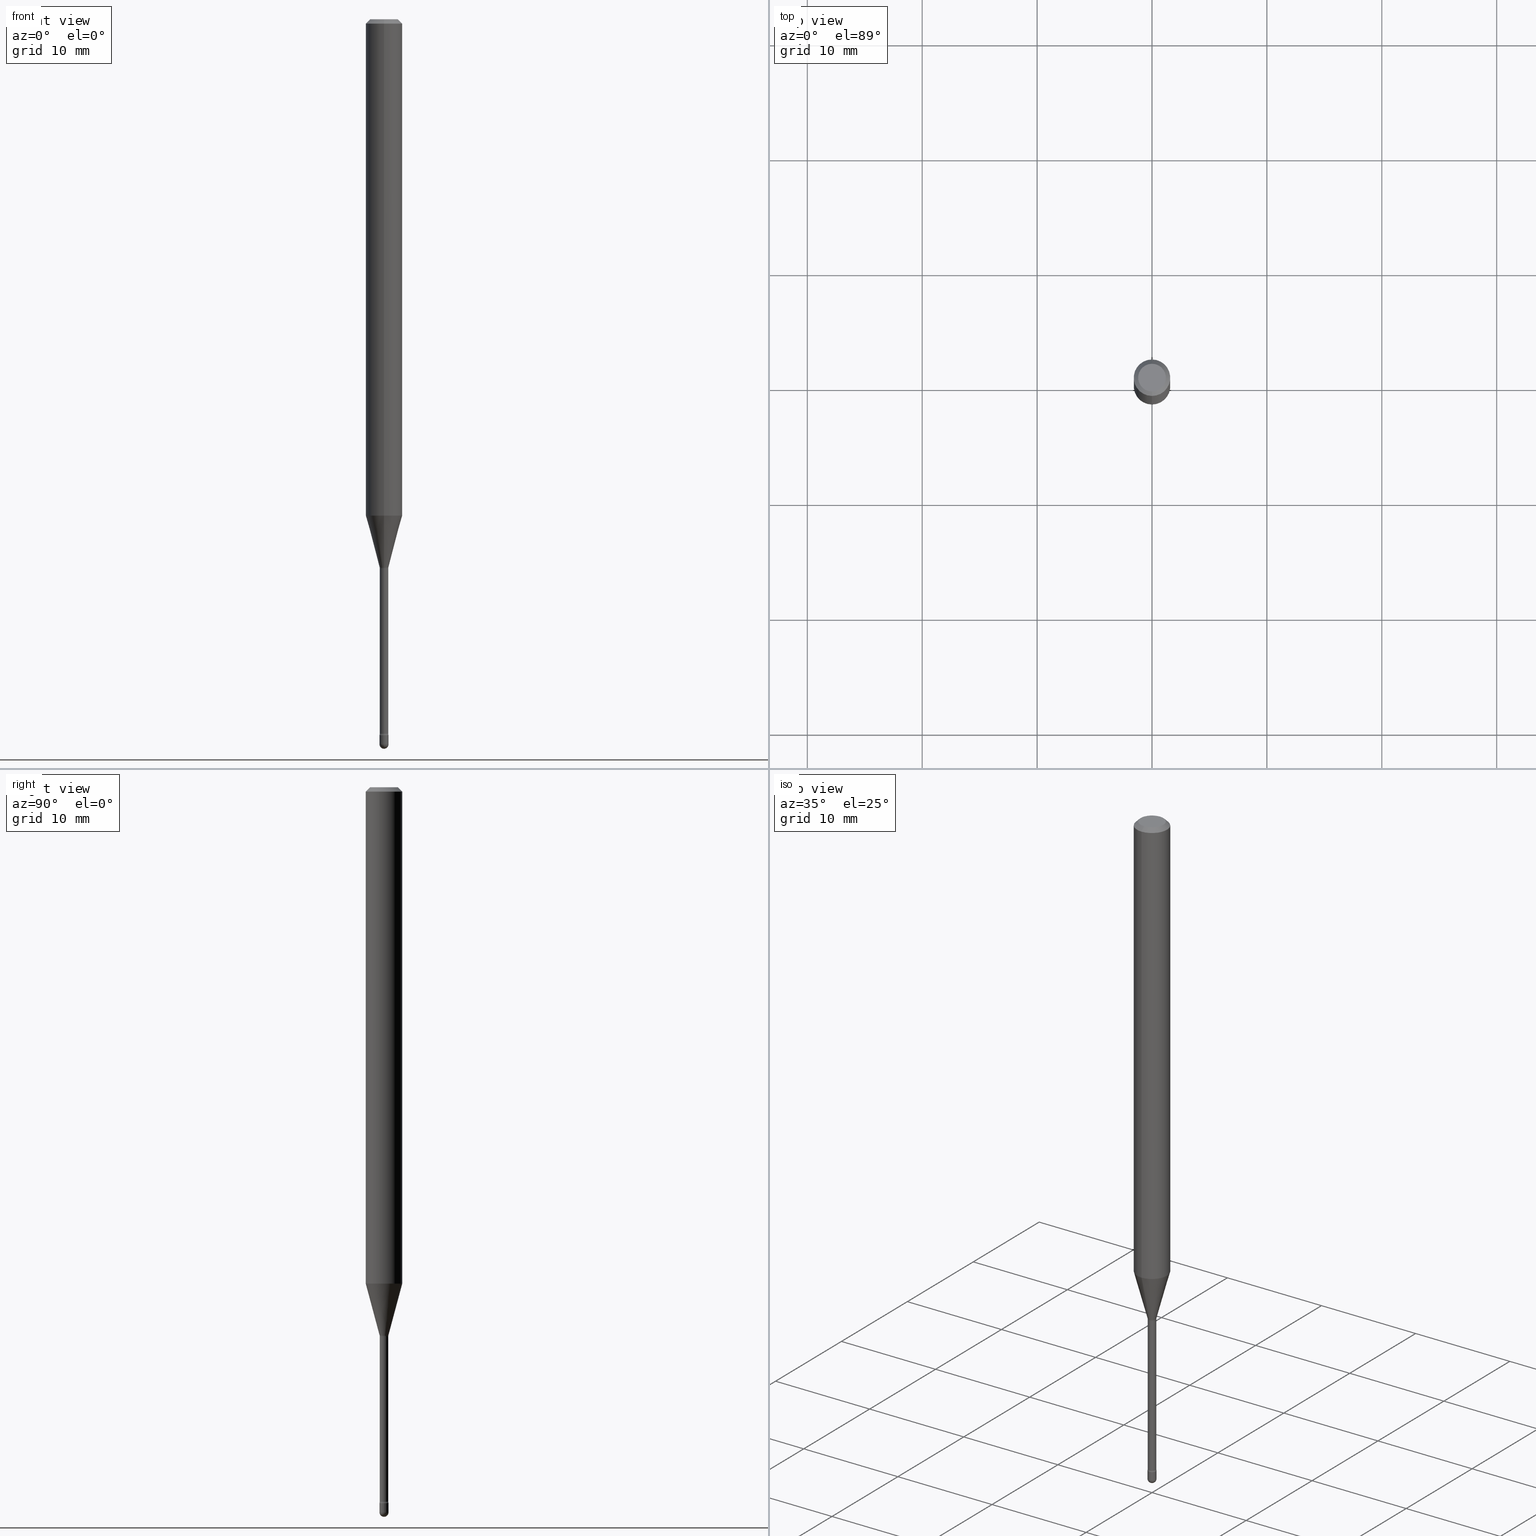
[diagram: canonical four-view strip — front | top / right | iso, engineering-drawing reading convention]
A machine part, canonical four-view strip (front | top / right | iso — engineering-drawing reading convention). The complete STEP part file that produces these views, byte-faithful:
ISO-10303-21;
HEADER;
FILE_DESCRIPTION (( 'STEP AP203' ),
    '1' );
FILE_NAME ('03945.STEP',
    '2024-04-09T21:21:14',
    ( '' ),
    ( '' ),
    'SwSTEP 2.0',
    'SolidWorks 2023',
    '' );
FILE_SCHEMA (( 'CONFIG_CONTROL_DESIGN' ));
ENDSEC;

DATA;
#1 = EDGE_LOOP ( 'NONE', ( #129, #92, #117, #342 ) ) ;
#2 = PERSON_AND_ORGANIZATION ( #205, #77 ) ;
#3 = VECTOR ( 'NONE', #198, 39.37007874015748143 ) ;
#4 = FACE_OUTER_BOUND ( 'NONE', #559, .T. ) ;
#5 = SPHERICAL_SURFACE ( 'NONE', #19, 0.01549999999999993744 ) ;
#6 = MANIFOLD_SOLID_BREP ( 'Body-Move/Copy2[2]', #251 ) ;
#7 = ADVANCED_FACE ( 'NONE', ( #112 ), #542, .T. ) ;
#8 = CARTESIAN_POINT ( 'NONE',  ( 1.070156415442400836E-16, 0.01506111260565742502, -1.878092501787273161 ) ) ;
#9 = AXIS2_PLACEMENT_3D ( 'NONE', #440, #453, #13 ) ;
#10 = AXIS2_PLACEMENT_3D ( 'NONE', #489, #565, #121 ) ;
#11 = SHAPE_DEFINITION_REPRESENTATION ( #177, #556 ) ;
#12 = FACE_OUTER_BOUND ( 'NONE', #374, .T. ) ;
#13 = DIRECTION ( 'NONE',  ( 6.982962677686265922E-15, 1.000000000000000000, 0.000000000000000000 ) ) ;
#14 = ORIENTED_EDGE ( 'NONE', *, *, #34, .F. ) ;
#15 = EDGE_CURVE ( 'NONE', #36, #409, #264, .T. ) ;
#16 = ORIENTED_EDGE ( 'NONE', *, *, #429, .T. ) ;
#17 = CIRCLE ( 'NONE', #462, 0.04749999999999999362 ) ;
#18 = ORIENTED_EDGE ( 'NONE', *, *, #278, .T. ) ;
#19 = AXIS2_PLACEMENT_3D ( 'NONE', #355, #319, #279 ) ;
#20 = DATE_AND_TIME ( #155, #275 ) ;
#21 = CARTESIAN_POINT ( 'NONE',  ( 3.668190658743146304E-31, -5.237239981344595795E-17, -0.01500000000000008271 ) ) ;
#22 = CARTESIAN_POINT ( 'NONE',  ( 0.01549999999999999989, -8.672839645686373673E-15, -2.452999999999999847 ) ) ;
#23 = DIRECTION ( 'NONE',  ( -1.000000000000000000, 6.982962677686265922E-15, -4.883557194083112340E-29 ) ) ;
#24 = EDGE_CURVE ( 'NONE', #259, #245, #531, .T. ) ;
#25 = FACE_OUTER_BOUND ( 'NONE', #141, .T. ) ;
#26 = DIRECTION ( 'NONE',  ( 1.000000000000000000, -6.982962677686238312E-15, 0.000000000000000000 ) ) ;
#27 = FACE_OUTER_BOUND ( 'NONE', #404, .T. ) ;
#28 = AXIS2_PLACEMENT_3D ( 'NONE', #321, #23, #115 ) ;
#29 = DIRECTION ( 'NONE',  ( -6.982962677686265922E-15, -1.000000000000000000, 4.370956789862821150E-15 ) ) ;
#30 = CC_DESIGN_DATE_AND_TIME_ASSIGNMENT ( #138, #229, ( #297 ) ) ;
#31 = CIRCLE ( 'NONE', #166, 0.01500000000000003240 ) ;
#32 = ORIENTED_EDGE ( 'NONE', *, *, #100, .F. ) ;
#33 = CARTESIAN_POINT ( 'NONE',  ( 3.668190658743146304E-31, -5.237239981344595795E-17, -0.01500000000000008271 ) ) ;
#34 = EDGE_CURVE ( 'NONE', #245, #348, #555, .T. ) ;
#35 = APPROVAL ( #104, 'UNSPECIFIED' ) ;
#36 = VERTEX_POINT ( 'NONE', #211 ) ;
#37 = AXIS2_PLACEMENT_3D ( 'NONE', #21, #210, #70 ) ;
#38 = ORIENTED_EDGE ( 'NONE', *, *, #516, .F. ) ;
#39 = CIRCLE ( 'NONE', #357, 0.01549999999999999989 ) ;
#40 = ORIENTED_EDGE ( 'NONE', *, *, #15, .T. ) ;
#41 = FACE_OUTER_BOUND ( 'NONE', #337, .T. ) ;
#42 = CC_DESIGN_APPROVAL ( #35, ( #340 ) ) ;
#43 = CALENDAR_DATE ( 2024, 9, 4 ) ;
#44 = DIRECTION ( 'NONE',  ( -2.445460439162084166E-29, 3.491493320896377968E-15, 1.000000000000000000 ) ) ;
#45 = EDGE_LOOP ( 'NONE', ( #306, #109, #82, #284 ) ) ;
#46 = FACE_OUTER_BOUND ( 'NONE', #484, .T. ) ;
#47 = CARTESIAN_POINT ( 'NONE',  ( -4.364351673553916201E-16, -0.06250000000000000000, 6.962917314472697602E-16 ) ) ;
#48 = AXIS2_PLACEMENT_3D ( 'NONE', #455, #71, #458 ) ;
#49 = ORIENTED_EDGE ( 'NONE', *, *, #469, .T. ) ;
#50 = CARTESIAN_POINT ( 'NONE',  ( 1.067590460480152170E-16, 0.01454999999999149508, -2.447746667724196357 ) ) ;
#51 = PERSON_AND_ORGANIZATION ( #205, #77 ) ;
#52 = EDGE_CURVE ( 'NONE', #271, #307, #184, .T. ) ;
#53 = DIRECTION ( 'NONE',  ( -2.445468806185136597E-29, 3.491481338843145583E-15, 1.000000000000000000 ) ) ;
#54 = ORIENTED_EDGE ( 'NONE', *, *, #382, .T. ) ;
#55 = APPROVAL_PERSON_ORGANIZATION ( #395, #472, #309 ) ;
#56 = CARTESIAN_POINT ( 'NONE',  ( 0.000000000000000000, 0.000000000000000000, 0.000000000000000000 ) ) ;
#57 = CARTESIAN_POINT ( 'NONE',  ( -1.169113584055446105E-44, 1.669184350826100908E-30, 4.780733988912460139E-16 ) ) ;
#58 = DIRECTION ( 'NONE',  ( -1.000000000000000000, 6.982962677686265922E-15, -4.883557194083112901E-29 ) ) ;
#59 = ORIENTED_EDGE ( 'NONE', *, *, #52, .F. ) ;
#60 = UNCERTAINTY_MEASURE_WITH_UNIT (LENGTH_MEASURE( 1.000000000000000082E-05 ), #94, 'distance_accuracy_value', 'NONE');
#61 = ORIENTED_EDGE ( 'NONE', *, *, #323, .T. ) ;
#62 = DIRECTION ( 'NONE',  ( -6.982962677686265922E-15, -1.000000000000000000, 3.491493320896376390E-15 ) ) ;
#63 = CARTESIAN_POINT ( 'NONE',  ( 4.592800914207722546E-29, -6.557347426015833165E-15, -1.878092501787273161 ) ) ;
#64 = ORIENTED_EDGE ( 'NONE', *, *, #207, .T. ) ;
#65 = AXIS2_PLACEMENT_3D ( 'NONE', #240, #415, #26 ) ;
#66 = ADVANCED_FACE ( 'NONE', ( #492 ), #512, .T. ) ;
#67 = DIRECTION ( 'NONE',  ( 6.982962677686265922E-15, 1.000000000000000000, 0.000000000000000000 ) ) ;
#68 = ORIENTED_EDGE ( 'NONE', *, *, #140, .F. ) ;
#69 = DIRECTION ( 'NONE',  ( 1.839019923739597554E-15, 0.2588190451025245697, 0.9659258262890670910 ) ) ;
#70 = DIRECTION ( 'NONE',  ( 6.982962677686265922E-15, 1.000000000000000000, -3.483106191921935554E-15 ) ) ;
#71 = DIRECTION ( 'NONE',  ( -2.445460439162084166E-29, 3.491493320896377968E-15, 1.000000000000000000 ) ) ;
#72 = DIRECTION ( 'NONE',  ( -2.445460439162084166E-29, 3.491493320896377968E-15, 1.000000000000000000 ) ) ;
#73 = ADVANCED_FACE ( 'NONE', ( #192 ), #5, .T. ) ;
#74 = AXIS2_PLACEMENT_3D ( 'NONE', #434, #53, #144 ) ;
#75 = DIRECTION ( 'NONE',  ( -2.445460439162084166E-29, 3.491493320896377968E-15, 1.000000000000000000 ) ) ;
#76 = PLANE ( 'NONE',  #326 ) ;
#77 = ORGANIZATION ( 'UNSPECIFIED', 'UNSPECIFIED', '' ) ;
#78 = DIRECTION ( 'NONE',  ( -2.445460439162084166E-29, 3.491493320896377968E-15, 1.000000000000000000 ) ) ;
#79 = FACE_OUTER_BOUND ( 'NONE', #139, .T. ) ;
#80 = CARTESIAN_POINT ( 'NONE',  ( 2.099653784171555799E-16, 0.02954999999999343221, -1.881974787463811083 ) ) ;
#81 = AXIS2_PLACEMENT_3D ( 'NONE', #450, #541, #244 ) ;
#82 = ORIENTED_EDGE ( 'NONE', *, *, #278, .F. ) ;
#83 = DIRECTION ( 'NONE',  ( -2.445460439162084166E-29, 3.491493320896377968E-15, 1.000000000000000000 ) ) ;
#84 = EDGE_CURVE ( 'NONE', #563, #261, #176, .T. ) ;
#85 = LOCAL_TIME ( 17, 21, 14.00000000000000000, #424 ) ;
#86 = VERTEX_POINT ( 'NONE', #412 ) ;
#87 = EDGE_LOOP ( 'NONE', ( #258, #396, #132, #292 ) ) ;
#88 = ORIENTED_EDGE ( 'NONE', *, *, #363, .F. ) ;
#89 = ADVANCED_FACE ( 'NONE', ( #447 ), #105, .T. ) ;
#90 = ORIENTED_EDGE ( 'NONE', *, *, #223, .T. ) ;
#91 = AXIS2_PLACEMENT_3D ( 'NONE', #557, #343, #519 ) ;
#92 = ORIENTED_EDGE ( 'NONE', *, *, #516, .T. ) ;
#93 = FACE_OUTER_BOUND ( 'NONE', #274, .T. ) ;
#94 =( CONVERSION_BASED_UNIT ( 'INCH', #493 ) LENGTH_UNIT ( ) NAMED_UNIT ( #265 ) );
#95 = DIRECTION ( 'NONE',  ( -2.445468806185136877E-29, 3.491481338843145188E-15, 1.000000000000000000 ) ) ;
#96 = SECURITY_CLASSIFICATION_LEVEL ( 'unclassified' ) ;
#97 = ORIENTED_EDGE ( 'NONE', *, *, #536, .T. ) ;
#98 = ORIENTED_EDGE ( 'NONE', *, *, #536, .F. ) ;
#99 = COORDINATED_UNIVERSAL_TIME_OFFSET ( 5, 0, .BEHIND. ) ;
#100 = EDGE_CURVE ( 'NONE', #358, #270, #523, .T. ) ;
#101 = CIRCLE ( 'NONE', #490, 0.01506111260566398054 ) ;
#102 = DIRECTION ( 'NONE',  ( -6.982962677686265922E-15, -1.000000000000000000, 0.000000000000000000 ) ) ;
#103 = EDGE_LOOP ( 'NONE', ( #137, #298, #497, #444 ) ) ;
#104 = APPROVAL_STATUS ( 'not_yet_approved' ) ;
#105 = SPHERICAL_SURFACE ( 'NONE', #256, 0.01549999999999993744 ) ;
#106 = CIRCLE ( 'NONE', #435, 0.01455000000000004033 ) ;
#107 = DIRECTION ( 'NONE',  ( -2.445460439162084166E-29, 3.491493320896377968E-15, 1.000000000000000000 ) ) ;
#108 = APPROVAL_ROLE ( '' ) ;
#109 = ORIENTED_EDGE ( 'NONE', *, *, #514, .T. ) ;
#110 = APPLICATION_CONTEXT ( 'configuration controlled 3d designs of mechanical parts and assemblies' ) ;
#111 = VERTEX_POINT ( 'NONE', #243 ) ;
#112 = FACE_OUTER_BOUND ( 'NONE', #180, .T. ) ;
#113 = TOROIDAL_SURFACE ( 'NONE', #174, 0.02955000000000006927, 0.01500000000000002720 ) ;
#114 = LINE ( 'NONE', #159, #182 ) ;
#115 = DIRECTION ( 'NONE',  ( -6.982962677686265133E-15, -1.000000000000000000, 0.000000000000000000 ) ) ;
#116 = ORIENTED_EDGE ( 'NONE', *, *, #24, .F. ) ;
#117 = ORIENTED_EDGE ( 'NONE', *, *, #236, .T. ) ;
#118 = CYLINDRICAL_SURFACE ( 'NONE', #510, 0.01455000000000001951 ) ;
#119 = ORIENTED_EDGE ( 'NONE', *, *, #285, .F. ) ;
#120 = APPROVAL_PERSON_ORGANIZATION ( #315, #530, #183 ) ;
#121 = DIRECTION ( 'NONE',  ( 1.000000000000000000, -6.982962677686266711E-15, 4.876176775795935232E-29 ) ) ;
#122 = DIRECTION ( 'NONE',  ( -6.982962677686265922E-15, -1.000000000000000000, 3.491493320896378757E-15 ) ) ;
#123 = AXIS2_PLACEMENT_3D ( 'NONE', #356, #107, #135 ) ;
#124 = DIRECTION ( 'NONE',  ( -2.445460439162084166E-29, 3.491493320896377968E-15, 1.000000000000000000 ) ) ;
#125 = DIRECTION ( 'NONE',  ( 1.000000000000000000, -6.982962677686238312E-15, 0.000000000000000000 ) ) ;
#126 = AXIS2_PLACEMENT_3D ( 'NONE', #149, #449, #385 ) ;
#127 = LINE ( 'NONE', #204, #291 ) ;
#128 = VECTOR ( 'NONE', #280, 39.37007874015748143 ) ;
#129 = ORIENTED_EDGE ( 'NONE', *, *, #148, .F. ) ;
#130 = CARTESIAN_POINT ( 'NONE',  ( 5.998734981572139453E-29, -8.564603724182235719E-15, -2.452999999999999847 ) ) ;
#131 = CARTESIAN_POINT ( 'NONE',  ( 4.592800914207722546E-29, -6.557347426015833165E-15, -1.878092501787273161 ) ) ;
#132 = ORIENTED_EDGE ( 'NONE', *, *, #363, .T. ) ;
#133 = CIRCLE ( 'NONE', #28, 0.01500000000000002720 ) ;
#134 = CIRCLE ( 'NONE', #525, 0.01549999999999999989 ) ;
#135 = DIRECTION ( 'NONE',  ( -6.982962677686265922E-15, -1.000000000000000000, 0.000000000000000000 ) ) ;
#136 = CARTESIAN_POINT ( 'NONE',  ( -1.051711872097357942E-16, -0.01506111260567053779, -1.878092501787273161 ) ) ;
#137 = ORIENTED_EDGE ( 'NONE', *, *, #514, .F. ) ;
#138 = DATE_AND_TIME ( #527, #377 ) ;
#139 = EDGE_LOOP ( 'NONE', ( #299, #529, #302, #480 ) ) ;
#140 = EDGE_CURVE ( 'NONE', #491, #408, #310, .T. ) ;
#141 = EDGE_LOOP ( 'NONE', ( #194, #344, #97, #441 ) ) ;
#142 = PERSON_AND_ORGANIZATION ( #205, #77 ) ;
#143 = VECTOR ( 'NONE', #95, 39.37007874015748143 ) ;
#144 = DIRECTION ( 'NONE',  ( 1.000000000000000000, -6.982962677686301420E-15, 0.000000000000000000 ) ) ;
#145 = ORIENTED_EDGE ( 'NONE', *, *, #169, .T. ) ;
#146 = APPROVAL_DATE_TIME ( #268, #35 ) ;
#147 = VERTEX_POINT ( 'NONE', #407 ) ;
#148 = EDGE_CURVE ( 'NONE', #86, #463, #535, .T. ) ;
#149 = CARTESIAN_POINT ( 'NONE',  ( 4.592800914207722546E-29, -6.557347426015833165E-15, -1.878092501787273161 ) ) ;
#150 = AXIS2_PLACEMENT_3D ( 'NONE', #504, #394, #187 ) ;
#151 = CARTESIAN_POINT ( 'NONE',  ( 0.01549999999999999989, -1.082359215041371286E-16, 7.558074002483699918E-31 ) ) ;
#152 = DIRECTION ( 'NONE',  ( 6.982962677686265922E-15, 1.000000000000000000, -3.491493320896377968E-15 ) ) ;
#153 = EDGE_LOOP ( 'NONE', ( #277, #551, #208, #328 ) ) ;
#154 = DIRECTION ( 'NONE',  ( 1.000000000000000000, -6.982962677686266711E-15, 4.876176775795935232E-29 ) ) ;
#155 = CALENDAR_DATE ( 2024, 9, 4 ) ;
#156 = CARTESIAN_POINT ( 'NONE',  ( -1.016021069602891557E-16, -0.01455000000000657157, -1.881974787463811083 ) ) ;
#157 = VERTEX_POINT ( 'NONE', #160 ) ;
#158 = CIRCLE ( 'NONE', #414, 0.04749999999999999362 ) ;
#159 = CARTESIAN_POINT ( 'NONE',  ( 4.440892098500625669E-16, 0.06250000000000000000, 2.598550663352224156E-16 ) ) ;
#160 = CARTESIAN_POINT ( 'NONE',  ( 3.840629472727447874E-16, 0.04749999999999999362, -2.485923956665947374E-16 ) ) ;
#161 = ADVANCED_FACE ( 'NONE', ( #247 ), #401, .T. ) ;
#162 = CARTESIAN_POINT ( 'NONE',  ( 2.023492015101258780E-45, -2.889144509279189737E-31, -8.274646292401678885E-17 ) ) ;
#163 = ORIENTED_EDGE ( 'NONE', *, *, #561, .F. ) ;
#164 = DIRECTION ( 'NONE',  ( -2.445460439162084166E-29, 3.491493320896377968E-15, 1.000000000000000000 ) ) ;
#165 = CONICAL_SURFACE ( 'NONE', #37, 0.06250000000000000000, 0.7853981633974483900 ) ;
#166 = AXIS2_PLACEMENT_3D ( 'NONE', #269, #391, #263 ) ;
#167 = CIRCLE ( 'NONE', #464, 0.01500000000000002720 ) ;
#168 = CARTESIAN_POINT ( 'NONE',  ( 6.075767248966972494E-29, -8.674585386355795965E-15, -2.484500000000000153 ) ) ;
#169 = EDGE_CURVE ( 'NONE', #261, #147, #332, .T. ) ;
#170 = DIRECTION ( 'NONE',  ( -6.982962677686265922E-15, -1.000000000000000000, 3.491493320896377968E-15 ) ) ;
#171 = CARTESIAN_POINT ( 'NONE',  ( 0.000000000000000000, 0.000000000000000000, 0.000000000000000000 ) ) ;
#172 = AXIS2_PLACEMENT_3D ( 'NONE', #288, #72, #249 ) ;
#173 = CARTESIAN_POINT ( 'NONE',  ( -2.063465471255697556E-16, -0.02955000000000861451, -2.447746667724196357 ) ) ;
#174 = AXIS2_PLACEMENT_3D ( 'NONE', #545, #164, #170 ) ;
#175 = ORIENTED_EDGE ( 'NONE', *, *, #223, .F. ) ;
#176 = CIRCLE ( 'NONE', #9, 0.01549999999999993744 ) ;
#177 = PRODUCT_DEFINITION_SHAPE ( 'NONE', 'NONE',  #340 ) ;
#178 = DIRECTION ( 'NONE',  ( -2.445460439162084166E-29, 3.491493320896377968E-15, 1.000000000000000000 ) ) ;
#179 = CIRCLE ( 'NONE', #501, 0.06250000000000000000 ) ;
#180 = EDGE_LOOP ( 'NONE', ( #390, #49, #98, #163 ) ) ;
#181 = DATE_AND_TIME ( #43, #85 ) ;
#182 = VECTOR ( 'NONE', #500, 39.37007874015748143 ) ;
#184 = CIRCLE ( 'NONE', #272, 0.01455000000000004033 ) ;
#183 = APPROVAL_ROLE ( '' ) ;
#185 = ORIENTED_EDGE ( 'NONE', *, *, #481, .T. ) ;
#186 = CALENDAR_DATE ( 2024, 9, 4 ) ;
#187 = DIRECTION ( 'NONE',  ( -6.982962677686265922E-15, -1.000000000000000000, 0.000000000000000000 ) ) ;
#188 = CARTESIAN_POINT ( 'NONE',  ( -4.287811248607203282E-16, -0.06250000000000005551, -0.01499999999999986587 ) ) ;
#189 = ORIENTED_EDGE ( 'NONE', *, *, #24, .T. ) ;
#190 = EDGE_CURVE ( 'NONE', #307, #491, #127, .T. ) ;
#191 = APPROVAL_STATUS ( 'not_yet_approved' ) ;
#192 = FACE_OUTER_BOUND ( 'NONE', #103, .T. ) ;
#193 = AXIS2_PLACEMENT_3D ( 'NONE', #418, #78, #29 ) ;
#194 = ORIENTED_EDGE ( 'NONE', *, *, #481, .F. ) ;
#195 = DIRECTION ( 'NONE',  ( -6.982962677686265922E-15, -1.000000000000000000, 3.491493320896378757E-15 ) ) ;
#196 = TOROIDAL_SURFACE ( 'NONE', #91, 0.02954999999999999988, 0.01500000000000002547 ) ;
#197 = DIRECTION ( 'NONE',  ( -2.445468806185136597E-29, 3.491481338843145583E-15, 1.000000000000000000 ) ) ;
#198 = DIRECTION ( 'NONE',  ( -2.445460439162083885E-29, 3.491493320896377968E-15, 1.000000000000000000 ) ) ;
#199 = CARTESIAN_POINT ( 'NONE',  ( 4.440892098501044258E-16, 0.06249999999999995143, -0.01500000000000030129 ) ) ;
#200 = CARTESIAN_POINT ( 'NONE',  ( 1.082359215041976490E-16, 0.01549999999999129678, -2.484500000000000153 ) ) ;
#201 = CARTESIAN_POINT ( 'NONE',  ( 6.075767248966972494E-29, -8.674585386355795965E-15, -2.484500000000000153 ) ) ;
#202 = DIRECTION ( 'NONE',  ( 1.000000000000000000, -6.982962677686301420E-15, 0.000000000000000000 ) ) ;
#203 = CARTESIAN_POINT ( 'NONE',  ( 6.075767248966972494E-29, -8.674585386355795965E-15, -2.484500000000000153 ) ) ;
#204 = CARTESIAN_POINT ( 'NONE',  ( 1.033839680530947034E-16, 0.01455000000000001951, 4.272721710722037114E-16 ) ) ;
#205 = PERSON ( 'UNSPECIFIED', 'UNSPECIFIED', 'UNSPECIFIED', ('UNSPECIFIED'), ('UNSPECIFIED'), ('UNSPECIFIED') ) ;
#206 = DIRECTION ( 'NONE',  ( -2.445460439162083885E-29, 3.491493320896377968E-15, 1.000000000000000000 ) ) ;
#207 = EDGE_CURVE ( 'NONE', #369, #86, #101, .T. ) ;
#208 = ORIENTED_EDGE ( 'NONE', *, *, #561, .T. ) ;
#209 = FACE_OUTER_BOUND ( 'NONE', #471, .T. ) ;
#210 = DIRECTION ( 'NONE',  ( 2.445460439162084166E-29, -3.491493320896377968E-15, -1.000000000000000000 ) ) ;
#211 = CARTESIAN_POINT ( 'NONE',  ( -1.082359215040772245E-16, -0.01550000000000858330, -2.452999999999999847 ) ) ;
#212 = DIRECTION ( 'NONE',  ( -2.445460439162084166E-29, 3.491493320896377968E-15, 1.000000000000000000 ) ) ;
#213 = EDGE_CURVE ( 'NONE', #147, #348, #473, .T. ) ;
#214 = DIRECTION ( 'NONE',  ( 6.982962677686265922E-15, 1.000000000000000000, -3.483106191921935554E-15 ) ) ;
#215 = ORIENTED_EDGE ( 'NONE', *, *, #213, .T. ) ;
#216 = EDGE_LOOP ( 'NONE', ( #221, #360 ) ) ;
#217 = ORIENTED_EDGE ( 'NONE', *, *, #402, .T. ) ;
#218 = AXIS2_PLACEMENT_3D ( 'NONE', #379, #331, #152 ) ;
#219 = PRODUCT ( '03945', '03945', '', ( #304 ) ) ;
#220 =( LENGTH_UNIT ( ) NAMED_UNIT ( * ) SI_UNIT ( $, .METRE. ) );
#221 = ORIENTED_EDGE ( 'NONE', *, *, #34, .T. ) ;
#222 = COORDINATED_UNIVERSAL_TIME_OFFSET ( 5, 0, .BEHIND. ) ;
#223 = EDGE_CURVE ( 'NONE', #307, #409, #31, .T. ) ;
#224 = DIRECTION ( 'NONE',  ( -6.982962677686265922E-15, -1.000000000000000000, 0.000000000000000000 ) ) ;
#225 = DIRECTION ( 'NONE',  ( -2.445460439162084166E-29, 3.491493320896377968E-15, 1.000000000000000000 ) ) ;
#226 = CARTESIAN_POINT ( 'NONE',  ( -0.01549999999999999989, 1.101341240428155280E-16, -7.624349389895103058E-31 ) ) ;
#227 = AXIS2_PLACEMENT_3D ( 'NONE', #366, #534, #438 ) ;
#228 = TOROIDAL_SURFACE ( 'NONE', #547, 0.02954999999999999988, 0.01500000000000002547 ) ;
#229 = DATE_TIME_ROLE ( 'classification_date' ) ;
#230 = CC_DESIGN_APPROVAL ( #530, ( #327 ) ) ;
#231 = DIRECTION ( 'NONE',  ( -6.982962677686265922E-15, -1.000000000000000000, 0.000000000000000000 ) ) ;
#232 = APPROVAL_DATE_TIME ( #181, #530 ) ;
#233 = ADVANCED_FACE ( 'NONE', ( #41 ), #196, .F. ) ;
#234 = APPLICATION_PROTOCOL_DEFINITION ( 'international standard', 'config_control_design', 1994, #509 ) ;
#235 = CARTESIAN_POINT ( 'NONE',  ( 4.602294890243221810E-29, -6.570902400525277926E-15, -1.881974787463811083 ) ) ;
#236 = EDGE_CURVE ( 'NONE', #369, #477, #388, .T. ) ;
#237 = AXIS2_PLACEMENT_3D ( 'NONE', #168, #333, #325 ) ;
#238 = CIRCLE ( 'NONE', #548, 0.01500000000000003240 ) ;
#239 = COORDINATED_UNIVERSAL_TIME_OFFSET ( 5, 0, .BEHIND. ) ;
#240 = CARTESIAN_POINT ( 'NONE',  ( 5.998734981572139453E-29, -8.564603724182235719E-15, -2.452999999999999847 ) ) ;
#241 = CARTESIAN_POINT ( 'NONE',  ( 1.033839680531546075E-16, 0.01454999999999343104, -1.881974787463811083 ) ) ;
#242 = CARTESIAN_POINT ( 'NONE',  ( 6.075767248966972494E-29, -8.674585386355795965E-15, -2.484500000000000153 ) ) ;
#243 = CARTESIAN_POINT ( 'NONE',  ( -1.101341240427545269E-16, -0.01550000000000864402, -2.484500000000000153 ) ) ;
#244 = DIRECTION ( 'NONE',  ( 1.000000000000000000, -6.982962677686265922E-15, 4.876176775795935793E-29 ) ) ;
#245 = VERTEX_POINT ( 'NONE', #22 ) ;
#246 = ADVANCED_FACE ( 'NONE', ( #209 ), #76, .F. ) ;
#247 = FACE_OUTER_BOUND ( 'NONE', #294, .T. ) ;
#248 = AXIS2_PLACEMENT_3D ( 'NONE', #335, #83, #257 ) ;
#249 = DIRECTION ( 'NONE',  ( -6.982962677686265922E-15, -1.000000000000000000, 3.491493320896377968E-15 ) ) ;
#250 = CC_DESIGN_PERSON_AND_ORGANIZATION_ASSIGNMENT ( #51, #478, ( #340 ) ) ;
#251 = CLOSED_SHELL ( 'NONE', ( #233, #295, #362, #421, #7, #161, #66, #502, #301, #273, #246, #526, #336, #461 ) ) ;
#252 = CARTESIAN_POINT ( 'NONE',  ( 4.364351673553919652E-16, 0.06249999999999995143, -0.01500000000000030129 ) ) ;
#253 = CC_DESIGN_SECURITY_CLASSIFICATION ( #297, ( #327 ) ) ;
#254 = DIRECTION ( 'NONE',  ( -6.982962677686265922E-15, -1.000000000000000000, 3.491493320896376390E-15 ) ) ;
#255 = CIRCLE ( 'NONE', #487, 0.06250000000000000000 ) ;
#256 = AXIS2_PLACEMENT_3D ( 'NONE', #203, #58, #67 ) ;
#257 = DIRECTION ( 'NONE',  ( -6.982962677686265922E-15, -1.000000000000000000, 4.370956789862821150E-15 ) ) ;
#258 = ORIENTED_EDGE ( 'NONE', *, *, #402, .F. ) ;
#259 = VERTEX_POINT ( 'NONE', #361 ) ;
#260 = EDGE_LOOP ( 'NONE', ( #466, #18, #54, #189, #448 ) ) ;
#261 = VERTEX_POINT ( 'NONE', #200 ) ;
#262 = CIRCLE ( 'NONE', #237, 0.01549999999999999989 ) ;
#263 = DIRECTION ( 'NONE',  ( 7.105427357600999492E-15, 1.000000000000000000, 0.000000000000000000 ) ) ;
#264 = CIRCLE ( 'NONE', #48, 0.01549999999999999989 ) ;
#265 = DIMENSIONAL_EXPONENTS ( 1.000000000000000000, 0.000000000000000000, 0.000000000000000000, 0.000000000000000000, 0.000000000000000000, 0.000000000000000000, 0.000000000000000000 ) ;
#266 = CARTESIAN_POINT ( 'NONE',  ( -1.169113584055446105E-44, 1.669184350826100908E-30, 4.780733988912460139E-16 ) ) ;
#267 = EDGE_CURVE ( 'NONE', #157, #422, #505, .T. ) ;
#268 = DATE_AND_TIME ( #186, #313 ) ;
#269 = CARTESIAN_POINT ( 'NONE',  ( 2.099653784171699273E-16, 0.02954999999999152402, -2.447746667724196357 ) ) ;
#270 = VERTEX_POINT ( 'NONE', #532 ) ;
#271 = VERTEX_POINT ( 'NONE', #416 ) ;
#272 = AXIS2_PLACEMENT_3D ( 'NONE', #378, #75, #231 ) ;
#273 = ADVANCED_FACE ( 'NONE', ( #27 ), #289, .F. ) ;
#274 = EDGE_LOOP ( 'NONE', ( #32, #383, #496, #513 ) ) ;
#275 = LOCAL_TIME ( 17, 21, 14.00000000000000000, #239 ) ;
#276 = DIRECTION ( 'NONE',  ( -2.445460439162084166E-29, 3.491493320896377968E-15, 1.000000000000000000 ) ) ;
#277 = ORIENTED_EDGE ( 'NONE', *, *, #469, .F. ) ;
#278 = EDGE_CURVE ( 'NONE', #147, #111, #39, .T. ) ;
#279 = DIRECTION ( 'NONE',  ( 6.982962677686265922E-15, 1.000000000000000000, 0.000000000000000000 ) ) ;
#280 = DIRECTION ( 'NONE',  ( -2.445468806185136877E-29, 3.491481338843145188E-15, 1.000000000000000000 ) ) ;
#281 = CARTESIAN_POINT ( 'NONE',  ( 1.082359215041971067E-16, 0.01549999999999143382, -2.452999999999999847 ) ) ;
#282 = AXIS2_PLACEMENT_3D ( 'NONE', #235, #495, #399 ) ;
#283 = CARTESIAN_POINT ( 'NONE',  ( -1.051711872097357942E-16, -0.01506111260567053779, -1.878092501787273161 ) ) ;
#284 = ORIENTED_EDGE ( 'NONE', *, *, #169, .F. ) ;
#285 = EDGE_CURVE ( 'NONE', #271, #36, #238, .T. ) ;
#286 = PLANE ( 'NONE',  #81 ) ;
#287 = CARTESIAN_POINT ( 'NONE',  ( -1.169113584055446105E-44, 1.669184350826100908E-30, 4.780733988912460139E-16 ) ) ;
#288 = CARTESIAN_POINT ( 'NONE',  ( 5.985888121363136129E-29, -8.546261812574526278E-15, -2.447746667724196357 ) ) ;
#289 = PLANE ( 'NONE',  #218 ) ;
#290 = EDGE_CURVE ( 'NONE', #348, #245, #392, .T. ) ;
#291 = VECTOR ( 'NONE', #479, 39.37007874015748143 ) ;
#292 = ORIENTED_EDGE ( 'NONE', *, *, #386, .T. ) ;
#293 = CC_DESIGN_DATE_AND_TIME_ASSIGNMENT ( #432, #494, ( #340 ) ) ;
#294 = EDGE_LOOP ( 'NONE', ( #64, #499, #439, #552 ) ) ;
#295 = ADVANCED_FACE ( 'NONE', ( #79 ), #467, .T. ) ;
#296 = DIRECTION ( 'NONE',  ( -2.445460439162084166E-29, 3.491493320896377968E-15, 1.000000000000000000 ) ) ;
#297 = SECURITY_CLASSIFICATION ( '', '', #96 ) ;
#298 = ORIENTED_EDGE ( 'NONE', *, *, #84, .T. ) ;
#299 = ORIENTED_EDGE ( 'NONE', *, *, #52, .T. ) ;
#300 = DIRECTION ( 'NONE',  ( -6.982962677686265922E-15, -1.000000000000000000, 0.000000000000000000 ) ) ;
#301 = ADVANCED_FACE ( 'NONE', ( #93 ), #372, .T. ) ;
#302 = ORIENTED_EDGE ( 'NONE', *, *, #386, .F. ) ;
#303 = ADVANCED_FACE ( 'NONE', ( #381 ), #550, .T. ) ;
#304 = MECHANICAL_CONTEXT ( 'NONE', #110, 'mechanical' ) ;
#305 = CARTESIAN_POINT ( 'NONE',  ( 4.602310636769652825E-29, -6.570879850603192255E-15, -1.881974787463811083 ) ) ;
#306 = ORIENTED_EDGE ( 'NONE', *, *, #84, .F. ) ;
#307 = VERTEX_POINT ( 'NONE', #50 ) ;
#308 = DIRECTION ( 'NONE',  ( -2.445460439162084166E-29, 3.491493320896377968E-15, 1.000000000000000000 ) ) ;
#310 = CIRCLE ( 'NONE', #282, 0.01455000000000000043 ) ;
#309 = APPROVAL_ROLE ( '' ) ;
#311 = CARTESIAN_POINT ( 'NONE',  ( 2.023492015101258780E-45, -2.889144509279189737E-31, -8.274646292401678885E-17 ) ) ;
#312 = AXIS2_PLACEMENT_3D ( 'NONE', #426, #419, #214 ) ;
#313 = LOCAL_TIME ( 17, 21, 14.00000000000000000, #99 ) ;
#314 = CC_DESIGN_PERSON_AND_ORGANIZATION_ASSIGNMENT ( #428, #560, ( #297 ) ) ;
#315 = PERSON_AND_ORGANIZATION ( #205, #77 ) ;
#316 = DIRECTION ( 'NONE',  ( -2.445460439162084166E-29, 3.491493320896377968E-15, 1.000000000000000000 ) ) ;
#317 = DIRECTION ( 'NONE',  ( -1.000000000000000000, 7.105427357601001070E-15, -4.926315508542082329E-29 ) ) ;
#318 = CARTESIAN_POINT ( 'NONE',  ( -0.01549999999999999989, -8.509460431226201399E-15, -2.452999999999999847 ) ) ;
#319 = DIRECTION ( 'NONE',  ( -1.000000000000000000, 6.982962677686265922E-15, -4.883557194083112901E-29 ) ) ;
#320 = ORIENTED_EDGE ( 'NONE', *, *, #546, .F. ) ;
#321 = CARTESIAN_POINT ( 'NONE',  ( -2.063465471255831663E-16, -0.02955000000000657101, -1.881974787463811083 ) ) ;
#322 = ADVANCED_FACE ( 'NONE', ( #4 ), #397, .T. ) ;
#323 = EDGE_CURVE ( 'NONE', #271, #408, #376, .T. ) ;
#324 = AXIS2_PLACEMENT_3D ( 'NONE', #57, #398, #195 ) ;
#325 = DIRECTION ( 'NONE',  ( 1.000000000000000000, -6.982962677686301420E-15, 0.000000000000000000 ) ) ;
#326 = AXIS2_PLACEMENT_3D ( 'NONE', #281, #410, #375 ) ;
#327 = PRODUCT_DEFINITION_FORMATION_WITH_SPECIFIED_SOURCE ( 'ANY', '', #219, .NOT_KNOWN. ) ;
#328 = ORIENTED_EDGE ( 'NONE', *, *, #553, .F. ) ;
#329 = FACE_OUTER_BOUND ( 'NONE', #87, .T. ) ;
#330 = APPROVAL_DATE_TIME ( #20, #472 ) ;
#331 = DIRECTION ( 'NONE',  ( 2.445460439162083885E-29, -3.491493320896377968E-15, -1.000000000000000000 ) ) ;
#332 = CIRCLE ( 'NONE', #74, 0.01549999999999999989 ) ;
#333 = DIRECTION ( 'NONE',  ( -2.445468806185136597E-29, 3.491481338843145583E-15, 1.000000000000000000 ) ) ;
#334 = DIRECTION ( 'NONE',  ( 1.000000000000000000, -6.982962677686301420E-15, 0.000000000000000000 ) ) ;
#335 = CARTESIAN_POINT ( 'NONE',  ( 4.159845989626137311E-29, -5.939198302350697681E-15, -1.701048163777072908 ) ) ;
#336 = ADVANCED_FACE ( 'NONE', ( #12 ), #118, .T. ) ;
#337 = EDGE_LOOP ( 'NONE', ( #38, #217, #413, #88 ) ) ;
#338 = CC_DESIGN_PERSON_AND_ORGANIZATION_ASSIGNMENT ( #483, #345, ( #327 ) ) ;
#339 = VECTOR ( 'NONE', #69, 39.37007874015748854 ) ;
#340 = PRODUCT_DEFINITION ( 'UNKNOWN', '', #327, #403 ) ;
#341 = ORIENTED_EDGE ( 'NONE', *, *, #546, .T. ) ;
#342 = ORIENTED_EDGE ( 'NONE', *, *, #540, .F. ) ;
#343 = DIRECTION ( 'NONE',  ( -2.445460439162084166E-29, 3.491493320896377968E-15, 1.000000000000000000 ) ) ;
#344 = ORIENTED_EDGE ( 'NONE', *, *, #100, .T. ) ;
#345 = PERSON_AND_ORGANIZATION_ROLE ( 'design_supplier' ) ;
#346 = CIRCLE ( 'NONE', #442, 0.01549999999999993744 ) ;
#347 = DIRECTION ( 'NONE',  ( -2.445468806185136597E-29, 3.491481338843145583E-15, 1.000000000000000000 ) ) ;
#348 = VERTEX_POINT ( 'NONE', #318 ) ;
#349 = PERSON_AND_ORGANIZATION_ROLE ( 'creator' ) ;
#350 = CARTESIAN_POINT ( 'NONE',  ( 4.440892098501039328E-16, 0.06249999999999404643, -1.701048163777073130 ) ) ;
#351 = CARTESIAN_POINT ( 'NONE',  ( 3.668190658743146304E-31, -5.237239981344595795E-17, -0.01500000000000008271 ) ) ;
#352 = DIRECTION ( 'NONE',  ( 0.000000000000000000, 0.000000000000000000, 1.000000000000000000 ) ) ;
#353 = ORIENTED_EDGE ( 'NONE', *, *, #562, .T. ) ;
#354 = APPROVAL_STATUS ( 'not_yet_approved' ) ;
#355 = CARTESIAN_POINT ( 'NONE',  ( 6.075767248966972494E-29, -8.674585386355795965E-15, -2.484500000000000153 ) ) ;
#356 = CARTESIAN_POINT ( 'NONE',  ( 4.592800914207722546E-29, -6.557347426015833165E-15, -1.878092501787273161 ) ) ;
#357 = AXIS2_PLACEMENT_3D ( 'NONE', #365, #445, #334 ) ;
#358 = VERTEX_POINT ( 'NONE', #538 ) ;
#359 = DIRECTION ( 'NONE',  ( -2.445460439162084166E-29, 3.491493320896377968E-15, 1.000000000000000000 ) ) ;
#360 = ORIENTED_EDGE ( 'NONE', *, *, #290, .T. ) ;
#361 = CARTESIAN_POINT ( 'NONE',  ( 0.01549999999999999989, -8.727830476773153796E-15, -2.484500000000000153 ) ) ;
#362 = ADVANCED_FACE ( 'NONE', ( #405 ), #482, .F. ) ;
#363 = EDGE_CURVE ( 'NONE', #369, #408, #133, .T. ) ;
#364 = ORIENTED_EDGE ( 'NONE', *, *, #562, .F. ) ;
#365 = CARTESIAN_POINT ( 'NONE',  ( 6.075767248966972494E-29, -8.674585386355795965E-15, -2.484500000000000153 ) ) ;
#366 = CARTESIAN_POINT ( 'NONE',  ( 4.602294890243221810E-29, -6.570902400525277926E-15, -1.881974787463811083 ) ) ;
#367 = DIRECTION ( 'NONE',  ( -4.851104656540964275E-15, -0.7071067811865500152, -0.7071067811865450192 ) ) ;
#368 = CIRCLE ( 'NONE', #126, 0.01506111260566398054 ) ;
#369 = VERTEX_POINT ( 'NONE', #283 ) ;
#370 = VECTOR ( 'NONE', #367, 39.37007874015748143 ) ;
#371 = CARTESIAN_POINT ( 'NONE',  ( -1.169113584055446105E-44, 1.669184350826100908E-30, 4.780733988912460139E-16 ) ) ;
#372 = CONICAL_SURFACE ( 'NONE', #312, 0.06250000000000000000, 0.7853981633974483900 ) ;
#373 = DIRECTION ( 'NONE',  ( 7.105427357601000281E-15, 1.000000000000000000, 0.000000000000000000 ) ) ;
#374 = EDGE_LOOP ( 'NONE', ( #430, #353, #61, #68 ) ) ;
#375 = DIRECTION ( 'NONE',  ( -6.982962677686265922E-15, -1.000000000000000000, 3.491493320896377968E-15 ) ) ;
#376 = LINE ( 'NONE', #411, #508 ) ;
#377 = LOCAL_TIME ( 17, 21, 14.00000000000000000, #520 ) ;
#378 = CARTESIAN_POINT ( 'NONE',  ( 5.985867641010341457E-29, -8.546291141605397487E-15, -2.447746667724196357 ) ) ;
#379 = CARTESIAN_POINT ( 'NONE',  ( 3.316907271900976096E-16, 0.04749999999999999362, 3.181753524103664550E-17 ) ) ;
#380 = AXIS2_PLACEMENT_3D ( 'NONE', #130, #347, #125 ) ;
#381 = FACE_OUTER_BOUND ( 'NONE', #260, .T. ) ;
#382 = EDGE_CURVE ( 'NONE', #111, #259, #134, .T. ) ;
#383 = ORIENTED_EDGE ( 'NONE', *, *, #420, .F. ) ;
#384 = CIRCLE ( 'NONE', #150, 0.01549999999999999989 ) ;
#385 = DIRECTION ( 'NONE',  ( -6.982962677686265922E-15, -1.000000000000000000, 0.000000000000000000 ) ) ;
#386 = EDGE_CURVE ( 'NONE', #408, #491, #457, .T. ) ;
#387 = AXIS2_PLACEMENT_3D ( 'NONE', #56, #352, #389 ) ;
#388 = LINE ( 'NONE', #136, #459 ) ;
#389 = DIRECTION ( 'NONE',  ( 1.000000000000000000, 0.000000000000000000, 0.000000000000000000 ) ) ;
#390 = ORIENTED_EDGE ( 'NONE', *, *, #417, .T. ) ;
#391 = DIRECTION ( 'NONE',  ( 1.000000000000000000, -7.105427357601001070E-15, 4.926315655279913661E-29 ) ) ;
#392 = CIRCLE ( 'NONE', #380, 0.01549999999999999989 ) ;
#393 =( NAMED_UNIT ( * ) SI_UNIT ( $, .STERADIAN. ) SOLID_ANGLE_UNIT ( ) );
#394 = DIRECTION ( 'NONE',  ( -2.445460439162084166E-29, 3.491493320896377968E-15, 1.000000000000000000 ) ) ;
#395 = PERSON_AND_ORGANIZATION ( #205, #77 ) ;
#396 = ORIENTED_EDGE ( 'NONE', *, *, #207, .F. ) ;
#397 = CYLINDRICAL_SURFACE ( 'NONE', #10, 0.01549999999999999989 ) ;
#398 = DIRECTION ( 'NONE',  ( -2.445460439162084166E-29, 3.491493320896377968E-15, 1.000000000000000000 ) ) ;
#399 = DIRECTION ( 'NONE',  ( -6.982962677686266711E-15, -1.000000000000000000, 0.000000000000000000 ) ) ;
#400 = CIRCLE ( 'NONE', #193, 0.06250000000000000000 ) ;
#401 = CONICAL_SURFACE ( 'NONE', #566, 0.01506111260566398054, 0.2617993877991499074 ) ;
#402 = EDGE_CURVE ( 'NONE', #86, #491, #167, .T. ) ;
#403 = DESIGN_CONTEXT ( 'detailed design', #509, 'design' ) ;
#404 = EDGE_LOOP ( 'NONE', ( #524, #185 ) ) ;
#405 = FACE_OUTER_BOUND ( 'NONE', #537, .T. ) ;
#406 = CYLINDRICAL_SURFACE ( 'NONE', #324, 0.06250000000000000000 ) ;
#407 = CARTESIAN_POINT ( 'NONE',  ( -0.01549999999999999989, -8.509460431226201399E-15, -2.484500000000000153 ) ) ;
#408 = VERTEX_POINT ( 'NONE', #156 ) ;
#409 = VERTEX_POINT ( 'NONE', #454 ) ;
#410 = DIRECTION ( 'NONE',  ( -2.445460439162083885E-29, 3.491493320896377968E-15, 1.000000000000000000 ) ) ;
#411 = CARTESIAN_POINT ( 'NONE',  ( -1.016021069603353041E-16, -0.01455000000000001951, 5.288746267102884150E-16 ) ) ;
#412 = CARTESIAN_POINT ( 'NONE',  ( 2.755524256971723102E-16, 0.01506111260565742675, -1.878092501787273161 ) ) ;
#413 = ORIENTED_EDGE ( 'NONE', *, *, #140, .T. ) ;
#414 = AXIS2_PLACEMENT_3D ( 'NONE', #311, #276, #446 ) ;
#415 = DIRECTION ( 'NONE',  ( -2.445468806185136597E-29, 3.491481338843145583E-15, 1.000000000000000000 ) ) ;
#416 = CARTESIAN_POINT ( 'NONE',  ( -1.016021069602755972E-16, -0.01455000000000858731, -2.447746667724196357 ) ) ;
#417 = EDGE_CURVE ( 'NONE', #477, #463, #400, .T. ) ;
#418 = CARTESIAN_POINT ( 'NONE',  ( 4.159845989626137311E-29, -5.939198302350697681E-15, -1.701048163777072908 ) ) ;
#419 = DIRECTION ( 'NONE',  ( 2.445460439162084166E-29, -3.491493320896377968E-15, -1.000000000000000000 ) ) ;
#420 = EDGE_CURVE ( 'NONE', #157, #358, #17, .T. ) ;
#421 = ADVANCED_FACE ( 'NONE', ( #25 ), #165, .T. ) ;
#422 = VERTEX_POINT ( 'NONE', #199 ) ;
#423 = CARTESIAN_POINT ( 'NONE',  ( 5.985867641010341457E-29, -8.546291141605397487E-15, -2.447746667724196357 ) ) ;
#424 = COORDINATED_UNIVERSAL_TIME_OFFSET ( 5, 0, .BEHIND. ) ;
#425 = CC_DESIGN_PERSON_AND_ORGANIZATION_ASSIGNMENT ( #142, #349, ( #327 ) ) ;
#426 = CARTESIAN_POINT ( 'NONE',  ( 3.668190658743146304E-31, -5.237239981344595795E-17, -0.01500000000000008271 ) ) ;
#427 =( NAMED_UNIT ( * ) PLANE_ANGLE_UNIT ( ) SI_UNIT ( $, .RADIAN. ) );
#428 = PERSON_AND_ORGANIZATION ( #205, #77 ) ;
#429 = EDGE_CURVE ( 'NONE', #259, #261, #262, .T. ) ;
#430 = ORIENTED_EDGE ( 'NONE', *, *, #190, .F. ) ;
#431 = AXIS2_PLACEMENT_3D ( 'NONE', #287, #316, #122 ) ;
#432 = DATE_AND_TIME ( #436, #517 ) ;
#433 = CARTESIAN_POINT ( 'NONE',  ( -4.364351673553500570E-16, -0.06250000000000595357, -1.701048163777072464 ) ) ;
#434 = CARTESIAN_POINT ( 'NONE',  ( 6.075767248966972494E-29, -8.674585386355795965E-15, -2.484500000000000153 ) ) ;
#435 = AXIS2_PLACEMENT_3D ( 'NONE', #423, #178, #224 ) ;
#436 = CALENDAR_DATE ( 2024, 9, 4 ) ;
#437 = FACE_OUTER_BOUND ( 'NONE', #153, .T. ) ;
#438 = DIRECTION ( 'NONE',  ( -6.982962677686266711E-15, -1.000000000000000000, 0.000000000000000000 ) ) ;
#439 = ORIENTED_EDGE ( 'NONE', *, *, #417, .F. ) ;
#440 = CARTESIAN_POINT ( 'NONE',  ( 6.075767248966972494E-29, -8.674585386355795965E-15, -2.484500000000000153 ) ) ;
#441 = ORIENTED_EDGE ( 'NONE', *, *, #267, .F. ) ;
#442 = AXIS2_PLACEMENT_3D ( 'NONE', #201, #317, #528 ) ;
#443 = AXIS2_PLACEMENT_3D ( 'NONE', #266, #296, #254 ) ;
#444 = ORIENTED_EDGE ( 'NONE', *, *, #382, .F. ) ;
#445 = DIRECTION ( 'NONE',  ( -2.445468806185136597E-29, 3.491481338843145583E-15, 1.000000000000000000 ) ) ;
#446 = DIRECTION ( 'NONE',  ( -6.982962677686266711E-15, -1.000000000000000000, 3.491493320896377968E-15 ) ) ;
#447 = FACE_OUTER_BOUND ( 'NONE', #45, .T. ) ;
#448 = ORIENTED_EDGE ( 'NONE', *, *, #290, .F. ) ;
#449 = DIRECTION ( 'NONE',  ( -2.445460439162084166E-29, 3.491493320896377968E-15, 1.000000000000000000 ) ) ;
#450 = CARTESIAN_POINT ( 'NONE',  ( 5.998734981572139453E-29, -8.564603724182235719E-15, -2.452999999999999847 ) ) ;
#451 = ORIENTED_EDGE ( 'NONE', *, *, #15, .F. ) ;
#452 = DIRECTION ( 'NONE',  ( -2.445460439162084166E-29, 3.491493320896377968E-15, 1.000000000000000000 ) ) ;
#453 = DIRECTION ( 'NONE',  ( 1.000000000000000000, -6.982962677686265922E-15, 4.883557194083112340E-29 ) ) ;
#454 = CARTESIAN_POINT ( 'NONE',  ( 1.101341240428756417E-16, 0.01549999999999145464, -2.452999999999999847 ) ) ;
#455 = CARTESIAN_POINT ( 'NONE',  ( 5.998714457264592764E-29, -8.564633116158816088E-15, -2.452999999999999847 ) ) ;
#456 = ADVANCED_FACE ( 'NONE', ( #507 ), #286, .T. ) ;
#457 = CIRCLE ( 'NONE', #227, 0.01455000000000000043 ) ;
#458 = DIRECTION ( 'NONE',  ( -6.982962677686265922E-15, -1.000000000000000000, 0.000000000000000000 ) ) ;
#459 = VECTOR ( 'NONE', #476, 39.37007874015748143 ) ;
#460 = DIRECTION ( 'NONE',  ( -1.000000000000000000, 6.982962677686265922E-15, -4.883557194083112340E-29 ) ) ;
#461 = ADVANCED_FACE ( 'NONE', ( #329 ), #228, .F. ) ;
#462 = AXIS2_PLACEMENT_3D ( 'NONE', #162, #212, #506 ) ;
#463 = VERTEX_POINT ( 'NONE', #350 ) ;
#464 = AXIS2_PLACEMENT_3D ( 'NONE', #80, #503, #373 ) ;
#465 = AXIS2_PLACEMENT_3D ( 'NONE', #171, #197, #154 ) ;
#466 = ORIENTED_EDGE ( 'NONE', *, *, #213, .F. ) ;
#467 = CYLINDRICAL_SURFACE ( 'NONE', #443, 0.01455000000000001951 ) ;
#468 =( GEOMETRIC_REPRESENTATION_CONTEXT ( 3 ) GLOBAL_UNCERTAINTY_ASSIGNED_CONTEXT ( ( #60 ) ) GLOBAL_UNIT_ASSIGNED_CONTEXT ( ( #94, #427, #393 ) ) REPRESENTATION_CONTEXT ( 'NONE', 'WORKASPACE' ) );
#469 = EDGE_CURVE ( 'NONE', #463, #422, #114, .T. ) ;
#470 = APPROVAL_PERSON_ORGANIZATION ( #486, #35, #108 ) ;
#471 = EDGE_LOOP ( 'NONE', ( #451, #320 ) ) ;
#472 = APPROVAL ( #191, 'UNSPECIFIED' ) ;
#473 = LINE ( 'NONE', #226, #143 ) ;
#474 = VECTOR ( 'NONE', #543, 39.37007874015748143 ) ;
#475 = CC_DESIGN_PERSON_AND_ORGANIZATION_ASSIGNMENT ( #2, #564, ( #219 ) ) ;
#476 = DIRECTION ( 'NONE',  ( -1.807323732225327773E-15, -0.2588190451025178529, 0.9659258262890690894 ) ) ;
#477 = VERTEX_POINT ( 'NONE', #433 ) ;
#478 = PERSON_AND_ORGANIZATION_ROLE ( 'creator' ) ;
#479 = DIRECTION ( 'NONE',  ( -2.445460439162083885E-29, 3.491493320896377968E-15, 1.000000000000000000 ) ) ;
#480 = ORIENTED_EDGE ( 'NONE', *, *, #323, .F. ) ;
#481 = EDGE_CURVE ( 'NONE', #358, #157, #158, .T. ) ;
#482 = TOROIDAL_SURFACE ( 'NONE', #172, 0.02955000000000006927, 0.01500000000000002720 ) ;
#483 = PERSON_AND_ORGANIZATION ( #205, #77 ) ;
#484 = EDGE_LOOP ( 'NONE', ( #175, #59, #518, #40 ) ) ;
#485 = CARTESIAN_POINT ( 'NONE',  ( 6.114334769336955252E-29, -8.727754245838525120E-15, -2.500000000000000000 ) ) ;
#486 = PERSON_AND_ORGANIZATION ( #205, #77 ) ;
#487 = AXIS2_PLACEMENT_3D ( 'NONE', #33, #124, #549 ) ;
#488 = LINE ( 'NONE', #47, #3 ) ;
#489 = CARTESIAN_POINT ( 'NONE',  ( 0.000000000000000000, 0.000000000000000000, 0.000000000000000000 ) ) ;
#490 = AXIS2_PLACEMENT_3D ( 'NONE', #131, #44, #300 ) ;
#491 = VERTEX_POINT ( 'NONE', #241 ) ;
#492 = FACE_OUTER_BOUND ( 'NONE', #1, .T. ) ;
#493 = LENGTH_MEASURE_WITH_UNIT ( LENGTH_MEASURE( 0.02539999999999999897 ), #220 );
#494 = DATE_TIME_ROLE ( 'creation_date' ) ;
#495 = DIRECTION ( 'NONE',  ( -2.445460439162084166E-29, 3.491493320896377968E-15, 1.000000000000000000 ) ) ;
#496 = ORIENTED_EDGE ( 'NONE', *, *, #267, .T. ) ;
#497 = ORIENTED_EDGE ( 'NONE', *, *, #429, .F. ) ;
#498 = CLOSED_SHELL ( 'NONE', ( #322, #89, #456, #73, #303 ) ) ;
#499 = ORIENTED_EDGE ( 'NONE', *, *, #148, .T. ) ;
#500 = DIRECTION ( 'NONE',  ( -2.445460439162083885E-29, 3.491493320896377968E-15, 1.000000000000000000 ) ) ;
#501 = AXIS2_PLACEMENT_3D ( 'NONE', #351, #225, #522 ) ;
#502 = ADVANCED_FACE ( 'NONE', ( #437 ), #406, .T. ) ;
#503 = DIRECTION ( 'NONE',  ( 1.000000000000000000, -7.105427357601001070E-15, 4.926315655279913661E-29 ) ) ;
#504 = CARTESIAN_POINT ( 'NONE',  ( 5.998714457264592764E-29, -8.564633116158816088E-15, -2.452999999999999847 ) ) ;
#505 = LINE ( 'NONE', #252, #474 ) ;
#506 = DIRECTION ( 'NONE',  ( -6.982962677686266711E-15, -1.000000000000000000, 3.491493320896377968E-15 ) ) ;
#507 = FACE_OUTER_BOUND ( 'NONE', #216, .T. ) ;
#508 = VECTOR ( 'NONE', #206, 39.37007874015748143 ) ;
#509 = APPLICATION_CONTEXT ( 'configuration controlled 3d designs of mechanical parts and assemblies' ) ;
#510 = AXIS2_PLACEMENT_3D ( 'NONE', #371, #359, #62 ) ;
#511 = DIRECTION ( 'NONE',  ( -6.982962677686262766E-15, -1.000000000000000000, 0.000000000000000000 ) ) ;
#512 = CONICAL_SURFACE ( 'NONE', #123, 0.01506111260566398054, 0.2617993877991499074 ) ;
#513 = ORIENTED_EDGE ( 'NONE', *, *, #553, .T. ) ;
#514 = EDGE_CURVE ( 'NONE', #563, #111, #346, .T. ) ;
#515 = PRODUCT_RELATED_PRODUCT_CATEGORY ( 'detail', '', ( #219 ) ) ;
#516 = EDGE_CURVE ( 'NONE', #86, #369, #368, .T. ) ;
#517 = LOCAL_TIME ( 17, 21, 14.00000000000000000, #222 ) ;
#518 = ORIENTED_EDGE ( 'NONE', *, *, #285, .T. ) ;
#519 = DIRECTION ( 'NONE',  ( -6.982962677686265922E-15, -1.000000000000000000, 3.491493320896377968E-15 ) ) ;
#520 = COORDINATED_UNIVERSAL_TIME_OFFSET ( 5, 0, .BEHIND. ) ;
#521 = APPLICATION_PROTOCOL_DEFINITION ( 'international standard', 'config_control_design', 1994, #110 ) ;
#522 = DIRECTION ( 'NONE',  ( -6.982962677686265922E-15, -1.000000000000000000, 3.483106191921935554E-15 ) ) ;
#523 = LINE ( 'NONE', #188, #370 ) ;
#524 = ORIENTED_EDGE ( 'NONE', *, *, #420, .T. ) ;
#525 = AXIS2_PLACEMENT_3D ( 'NONE', #242, #544, #202 ) ;
#526 = ADVANCED_FACE ( 'NONE', ( #46 ), #113, .F. ) ;
#527 = CALENDAR_DATE ( 2024, 9, 4 ) ;
#528 = DIRECTION ( 'NONE',  ( -7.105427357601001070E-15, -1.000000000000000000, 0.000000000000000000 ) ) ;
#529 = ORIENTED_EDGE ( 'NONE', *, *, #190, .T. ) ;
#530 = APPROVAL ( #354, 'UNSPECIFIED' ) ;
#531 = LINE ( 'NONE', #151, #128 ) ;
#532 = CARTESIAN_POINT ( 'NONE',  ( -4.364351673553912750E-16, -0.06250000000000005551, -0.01499999999999986587 ) ) ;
#533 = DIRECTION ( 'NONE',  ( -6.982962677686265922E-15, -1.000000000000000000, 3.491493320896377968E-15 ) ) ;
#534 = DIRECTION ( 'NONE',  ( -2.445460439162084166E-29, 3.491493320896377968E-15, 1.000000000000000000 ) ) ;
#535 = LINE ( 'NONE', #8, #339 ) ;
#536 = EDGE_CURVE ( 'NONE', #270, #422, #255, .T. ) ;
#537 = EDGE_LOOP ( 'NONE', ( #364, #90, #341, #119 ) ) ;
#538 = CARTESIAN_POINT ( 'NONE',  ( -3.773273898774340269E-16, -0.04749999999999999362, 8.309946981856114738E-17 ) ) ;
#539 = CC_DESIGN_APPROVAL ( #472, ( #297 ) ) ;
#540 = EDGE_CURVE ( 'NONE', #463, #477, #554, .T. ) ;
#541 = DIRECTION ( 'NONE',  ( -2.438088387897960049E-29, 3.491481338843145188E-15, 1.000000000000000000 ) ) ;
#542 = CYLINDRICAL_SURFACE ( 'NONE', #431, 0.06250000000000000000 ) ;
#543 = DIRECTION ( 'NONE',  ( 4.937700262164548042E-15, 0.7071067811865451302, -0.7071067811865499042 ) ) ;
#544 = DIRECTION ( 'NONE',  ( -2.445468806185136597E-29, 3.491481338843145583E-15, 1.000000000000000000 ) ) ;
#545 = CARTESIAN_POINT ( 'NONE',  ( 5.985888121363136129E-29, -8.546261812574526278E-15, -2.447746667724196357 ) ) ;
#546 = EDGE_CURVE ( 'NONE', #409, #36, #384, .T. ) ;
#547 = AXIS2_PLACEMENT_3D ( 'NONE', #305, #452, #533 ) ;
#548 = AXIS2_PLACEMENT_3D ( 'NONE', #173, #460, #511 ) ;
#549 = DIRECTION ( 'NONE',  ( -6.982962677686265922E-15, -1.000000000000000000, 3.483106191921935554E-15 ) ) ;
#550 = CYLINDRICAL_SURFACE ( 'NONE', #465, 0.01549999999999999989 ) ;
#551 = ORIENTED_EDGE ( 'NONE', *, *, #540, .T. ) ;
#552 = ORIENTED_EDGE ( 'NONE', *, *, #236, .F. ) ;
#553 = EDGE_CURVE ( 'NONE', #422, #270, #179, .T. ) ;
#554 = CIRCLE ( 'NONE', #248, 0.06250000000000000000 ) ;
#555 = CIRCLE ( 'NONE', #65, 0.01549999999999999989 ) ;
#556 = ADVANCED_BREP_SHAPE_REPRESENTATION ( '03945', ( #558, #6, #387 ), #468 ) ;
#557 = CARTESIAN_POINT ( 'NONE',  ( 4.602310636769652825E-29, -6.570879850603192255E-15, -1.881974787463811083 ) ) ;
#558 = MANIFOLD_SOLID_BREP ( 'Body-Move/Copy2[1]', #498 ) ;
#559 = EDGE_LOOP ( 'NONE', ( #145, #215, #14, #116, #16 ) ) ;
#560 = PERSON_AND_ORGANIZATION_ROLE ( 'classification_officer' ) ;
#561 = EDGE_CURVE ( 'NONE', #477, #270, #488, .T. ) ;
#562 = EDGE_CURVE ( 'NONE', #307, #271, #106, .T. ) ;
#563 = VERTEX_POINT ( 'NONE', #485 ) ;
#564 = PERSON_AND_ORGANIZATION_ROLE ( 'design_owner' ) ;
#565 = DIRECTION ( 'NONE',  ( -2.445468806185136597E-29, 3.491481338843145583E-15, 1.000000000000000000 ) ) ;
#566 = AXIS2_PLACEMENT_3D ( 'NONE', #63, #308, #102 ) ;
ENDSEC;
END-ISO-10303-21;
